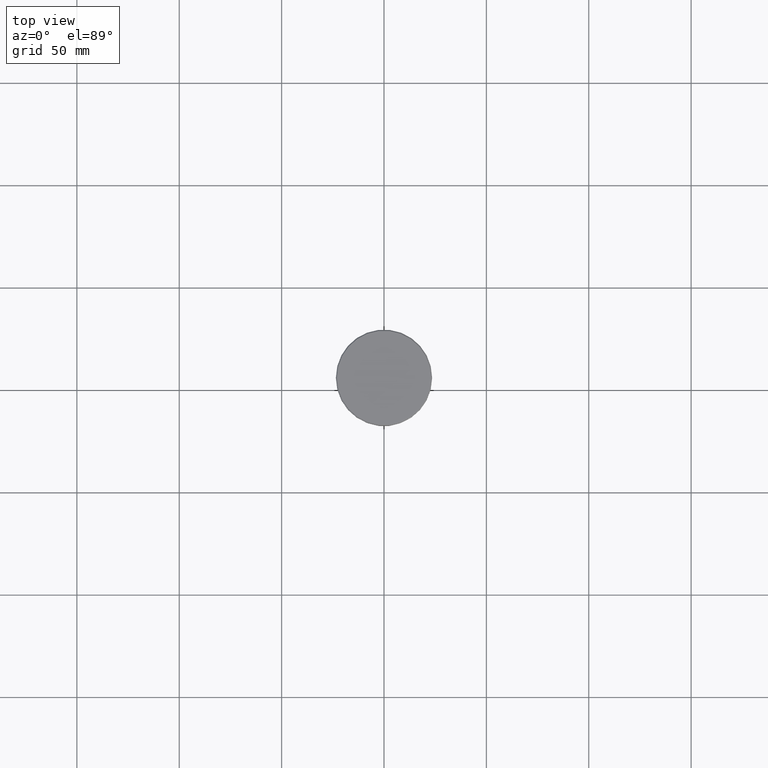
[diagram: clean part render]
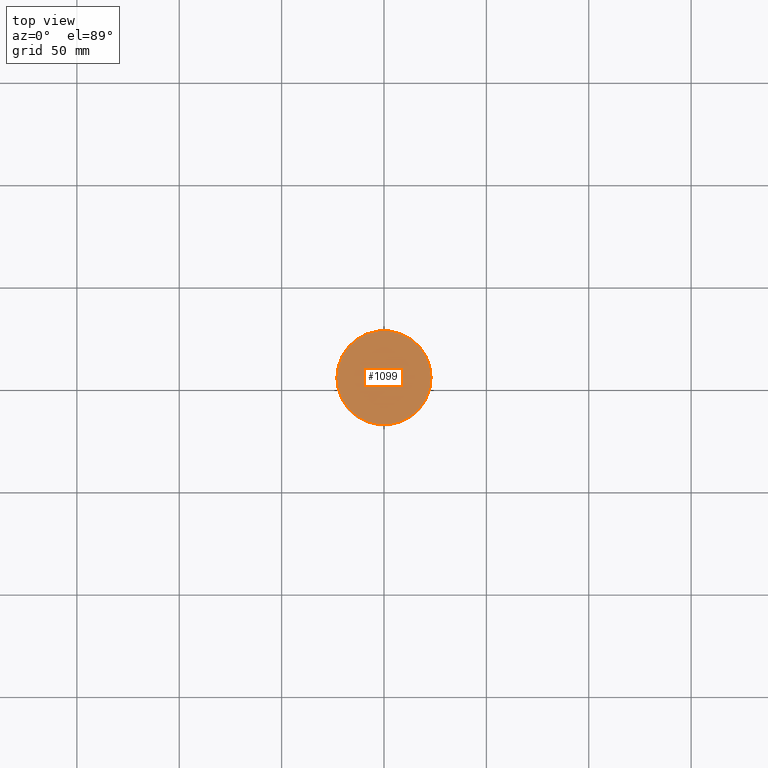
[diagram: same view with one face highlighted and labeled with its STEP entity id]
A machine part, top view. The second image highlights one B-rep face of the part: STEP entity #1099.
In plain terms, the highlighted planar face has unit normal (0, -0, 1).
Its self-contained STEP definition (entity closure, byte-faithful):
#172 = ORIENTED_EDGE ( 'NONE', *, *, #217, .T. ) ;
#201 = DIRECTION ( 'NONE',  ( -0.000000000000000000, -0.000000000000000000, 1.000000000000000000 ) ) ;
#217 = EDGE_CURVE ( 'NONE', #449, #619, #777, .T. ) ;
#299 = DIRECTION ( 'NONE',  ( 1.000000000000000000, 0.000000000000000000, 0.000000000000000000 ) ) ;
#309 = CARTESIAN_POINT ( 'NONE',  ( 0.000000000000000000, 0.000000000000000000, 0.000000000000000000 ) ) ;
#328 = DIRECTION ( 'NONE',  ( -0.000000000000000000, -0.000000000000000000, 1.000000000000000000 ) ) ;
#334 = DIRECTION ( 'NONE',  ( 1.000000000000000000, 0.000000000000000000, 0.000000000000000000 ) ) ;
#372 = CARTESIAN_POINT ( 'NONE',  ( 0.000000000000000000, 0.000000000000000000, 0.000000000000000000 ) ) ;
#390 = DIRECTION ( 'NONE',  ( 0.000000000000000000, -0.000000000000000000, 1.000000000000000000 ) ) ;
#391 = EDGE_CURVE ( 'NONE', #619, #449, #1110, .T. ) ;
#406 = FACE_OUTER_BOUND ( 'NONE', #539, .T. ) ;
#434 = AXIS2_PLACEMENT_3D ( 'NONE', #372, #328, #334 ) ;
#449 = VERTEX_POINT ( 'NONE', #932 ) ;
#539 = EDGE_LOOP ( 'NONE', ( #172, #555 ) ) ;
#555 = ORIENTED_EDGE ( 'NONE', *, *, #391, .T. ) ;
#604 = AXIS2_PLACEMENT_3D ( 'NONE', #309, #390, #299 ) ;
#619 = VERTEX_POINT ( 'NONE', #918 ) ;
#699 = AXIS2_PLACEMENT_3D ( 'NONE', #1026, #201, #753 ) ;
#753 = DIRECTION ( 'NONE',  ( 1.000000000000000000, 0.000000000000000000, 0.000000000000000000 ) ) ;
#769 = PLANE ( 'NONE',  #604 ) ;
#777 = CIRCLE ( 'NONE', #434, 22.99999999999996803 ) ;
#918 = CARTESIAN_POINT ( 'NONE',  ( 22.99999999999996803, 2.847303808017594561E-15, 0.000000000000000000 ) ) ;
#932 = CARTESIAN_POINT ( 'NONE',  ( -22.99999999999996803, 0.000000000000000000, 0.000000000000000000 ) ) ;
#1026 = CARTESIAN_POINT ( 'NONE',  ( 0.000000000000000000, 0.000000000000000000, 0.000000000000000000 ) ) ;
#1099 = ADVANCED_FACE ( 'NONE', ( #406 ), #769, .T. ) ;
#1110 = CIRCLE ( 'NONE', #699, 22.99999999999996803 ) ;